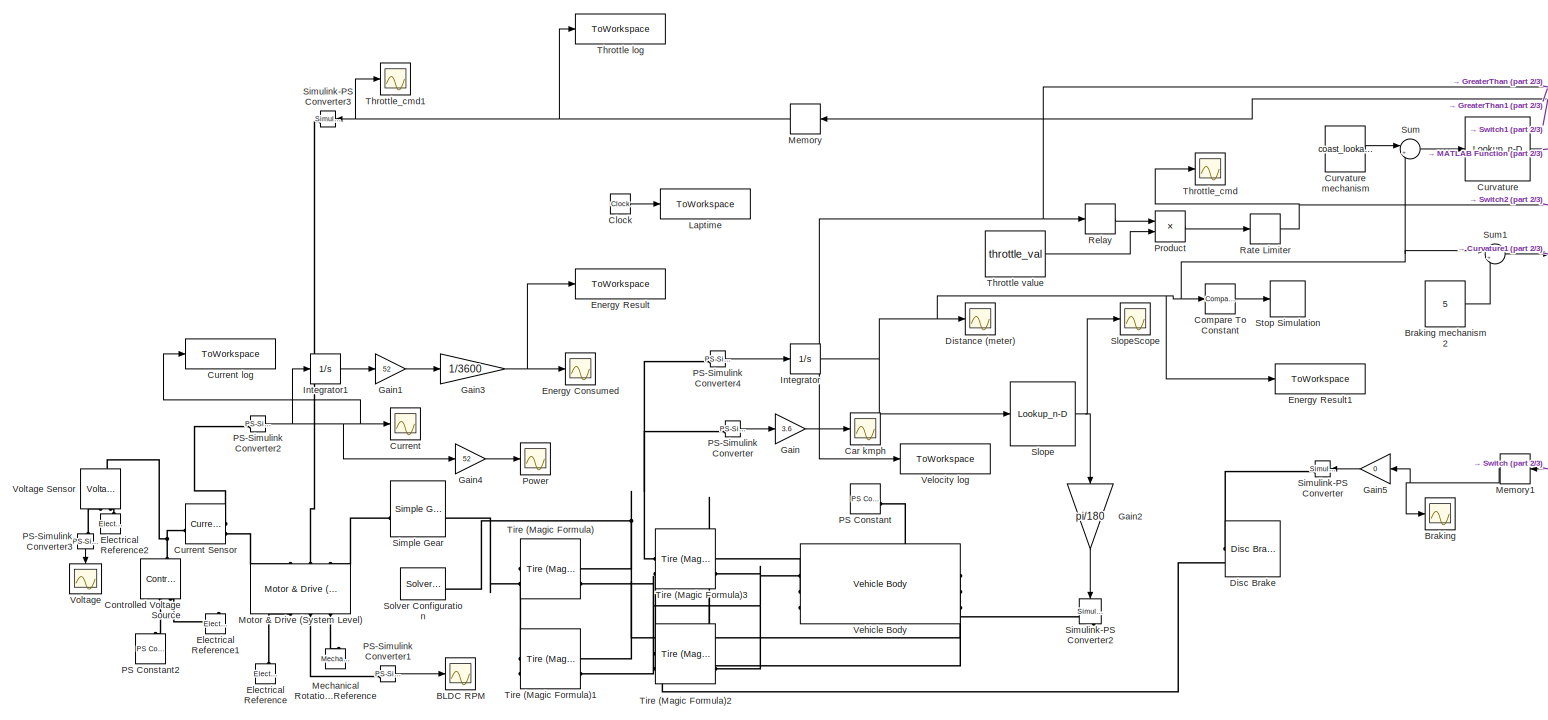
[diagram: root canvas - part 1/3, top center region]
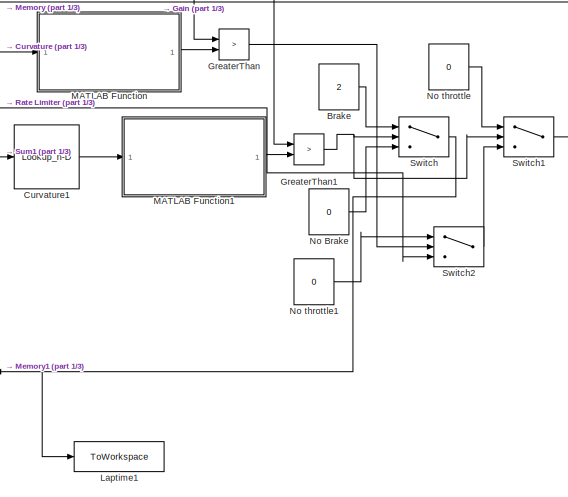
[diagram: root canvas - part 2/3, top right region]
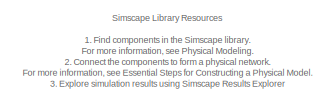
[diagram: root canvas - part 3/3, bottom left region]
MODEL slx_b66715b7597e
KIND model
CONFIG AbsTol = 1e-3
CONFIG EnableMultiTasking = off
CONFIG FixedStep = auto
CONFIG MaxStep = auto
CONFIG MinStep = auto
CONFIG RelTol = 1e-3
CONFIG SampleTimeConstraint = Unconstrained
CONFIG SolverName = VariableStepAuto
CONFIG StartTime = 0.0
CONFIG StopTime = 700
BLOCK [Scope] BLDC RPM
  Floating = off
  NumInputPorts = 1
  ScopeSpecificationString = Simulink.scopes.TimeScopeBlockCfg('CurrentConfiguration', extmgr.ConfigurationSet(extmgr.Configuration('Core','General UI',true),extmgr.Configuration('Core','Source UI',true),extmgr.Configuration('Sources','WiredSimulink',true,'DataLoggingVariableName','ScopeData1'),extmgr.Configuration('Visuals','Time Domain',true,'SerializedDisplays',{struct('MinYLimReal','-27.30095','MaxYLimReal','245.70851','Y...<+1507ch>
BLOCK [Constant] Brake
  Value = 2
BLOCK [Scope] Braking
  Floating = off
  NumInputPorts = 1
  ScopeSpecificationString = Simulink.scopes.TimeScopeBlockCfg('CurrentConfiguration', extmgr.ConfigurationSet(extmgr.Configuration('Core','General UI',true),extmgr.Configuration('Core','Source UI',true),extmgr.Configuration('Sources','WiredSimulink',true,'DataLoggingVariableName','ScopeData1'),extmgr.Configuration('Visuals','Time Domain',true,'SerializedDisplays',{struct('MinYLimReal','-0.25','MaxYLimReal','2.25','YLabelReal...<+1464ch>
BLOCK [Constant] Braking mechanism 2
  Value = 5
BLOCK [Scope] Car kmph
  Floating = off
  NumInputPorts = 1
  ScopeSpecificationString = Simulink.scopes.TimeScopeBlockCfg('CurrentConfiguration', extmgr.ConfigurationSet(extmgr.Configuration('Core','General UI',true),extmgr.Configuration('Core','Source UI',true),extmgr.Configuration('Sources','WiredSimulink',true,'DataLogging',true,'DataLoggingVariableName','LusailSpeed','DataLoggingSaveFormat','StructureWithTime'),extmgr.Configuration('Visuals','Time Domain',true,'SerializedDisplays...<+1547ch>
BLOCK [Clock] Clock
BLOCK [Reference] Compare To Constant  REF=simulink/Logic and Bit
Operations/Compare
To Constant
  SourceBlock = simulink/Logic and Bit\nOperations/Compare\nTo Constant
  SourceType = Compare To Constant
BLOCK [Reference] Controlled Voltage Source  REF=fl_lib/Electrical/Electrical Sources/Controlled Voltage
Source
  NameLocation = right
  SourceBlock = fl_lib/Electrical/Electrical Sources/Controlled Voltage\nSource
  SourceType = Controlled Voltage\nSource
BLOCK [Scope] Current
  Floating = off
  NumInputPorts = 1
  ScopeSpecificationString = Simulink.scopes.TimeScopeBlockCfg('CurrentConfiguration', extmgr.ConfigurationSet(extmgr.Configuration('Core','General UI',true),extmgr.Configuration('Core','Source UI',true),extmgr.Configuration('Sources','WiredSimulink',true,'DataLoggingVariableName','LusailCurr','DataLogging',true,'DataLoggingSaveFormat','StructureWithTime'),extmgr.Configuration('Visuals','Time Domain',true,'SerializedDisplays'...<+1579ch>
BLOCK [Reference] Current Sensor  REF=fl_lib/Electrical/Electrical Sensors/Current Sensor
  SourceBlock = fl_lib/Electrical/Electrical Sensors/Current Sensor
  SourceType = Current Sensor
BLOCK [ToWorkspace] Current log
  FixptAsFi = on
  MaxDataPoints = inf
  SampleTime = -1
  SaveFormat = Timeseries
  VariableName = Current_Log
BLOCK [Lookup_n-D] Curvature
  BreakpointsForDimension1 = track_dist
  InputPortMap = u0
  InternalRulePriority = Speed
  NumberOfTableDimensions = 1
  RndMeth = Simplest
  Table = track_curvature
BLOCK [Constant] Curvature mechanism
  Value = coast_lookahead
BLOCK [Lookup_n-D] Curvature1
  BreakpointsForDimension1 = track_dist
  InputPortMap = u0
  InternalRulePriority = Speed
  NumberOfTableDimensions = 1
  RndMeth = Simplest
  Table = track_curvature
BLOCK [Reference] Disc Brake  REF=sdl_lib/Brakes & Detents/Rotational/Disc Brake
  SourceBlock = sdl_lib/Brakes & Detents/Rotational/Disc Brake
  SourceType = Disc Brake
BLOCK [Scope] Distance (meter)
  Floating = off
  NumInputPorts = 1
  ScopeSpecificationString = Simulink.scopes.TimeScopeBlockCfg('CurrentConfiguration', extmgr.ConfigurationSet(extmgr.Configuration('Core','General UI',true),extmgr.Configuration('Core','Source UI',true),extmgr.Configuration('Sources','WiredSimulink',true,'DataLoggingVariableName','LusailDist','DataLogging',true,'DataLoggingSaveFormat','StructureWithTime'),extmgr.Configuration('Visuals','Time Domain',true,'SerializedDisplays'...<+1566ch>
BLOCK [Reference] Electrical Reference  REF=fl_lib/Electrical/Electrical Elements/Electrical Reference
  SourceBlock = fl_lib/Electrical/Electrical Elements/Electrical Reference
  SourceType = Electrical Reference
BLOCK [Reference] Electrical Reference1  REF=fl_lib/Electrical/Electrical Elements/Electrical Reference
  NameLocation = right
  SourceBlock = fl_lib/Electrical/Electrical Elements/Electrical Reference
  SourceType = Electrical Reference
BLOCK [Reference] Electrical Reference2  REF=fl_lib/Electrical/Electrical Elements/Electrical Reference
  NameLocation = right
  SourceBlock = fl_lib/Electrical/Electrical Elements/Electrical Reference
  SourceType = Electrical Reference
BLOCK [Scope] Energy Consumed
  Floating = off
  NumInputPorts = 1
  ScopeSpecificationString = Simulink.scopes.TimeScopeBlockCfg('CurrentConfiguration', extmgr.ConfigurationSet(extmgr.Configuration('Core','General UI',true),extmgr.Configuration('Core','Source UI',true),extmgr.Configuration('Sources','WiredSimulink',true,'DataLoggingVariableName','ScopeData1'),extmgr.Configuration('Visuals','Time Domain',true,'SerializedDisplays',{struct('MinYLimReal','-1.38442','MaxYLimReal','12.45977','YLa...<+1503ch>
BLOCK [ToWorkspace] Energy Result
  FixptAsFi = on
  MaxDataPoints = inf
  SampleTime = -1
  SaveFormat = Timeseries
  VariableName = Energy_Result
BLOCK [ToWorkspace] Energy Result1
  FixptAsFi = on
  MaxDataPoints = inf
  SampleTime = -1
  SaveFormat = Timeseries
  VariableName = Distance
BLOCK [Gain] Gain
  Gain = 3.6
BLOCK [Gain] Gain1
  Gain = 52
BLOCK [Gain] Gain2
  Gain = pi/180
  NameLocation = left
BLOCK [Gain] Gain3
  Gain = 1/3600
BLOCK [Gain] Gain4
  Gain = 52
BLOCK [Gain] Gain5
  Gain = 0
  NameLocation = top
BLOCK [RelationalOperator] GreaterThan
  InputSameDT = off
  Operator = >
  OutDataTypeStr = boolean
  RndMeth = Simplest
BLOCK [RelationalOperator] GreaterThan1
  InputSameDT = off
  Operator = >
  OutDataTypeStr = boolean
  RndMeth = Simplest
BLOCK [Integrator] Integrator
BLOCK [Integrator] Integrator1
BLOCK [ToWorkspace] Laptime
  FixptAsFi = on
  MaxDataPoints = inf
  SampleTime = -1
  SaveFormat = Timeseries
  VariableName = laptime
BLOCK [ToWorkspace] Laptime1
  FixptAsFi = on
  MaxDataPoints = inf
  SampleTime = -1
  SaveFormat = Timeseries
  VariableName = Brake_Log
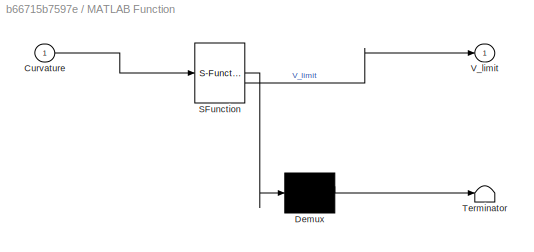
BLOCK [SubSystem] MATLAB Function
  ErrorFcn = Stateflow.Translate.translate
  PermitHierarchicalResolution = ExplicitOnly
  SFBlockType = MATLAB Function
  TreatAsAtomicUnit = on
BLOCK [Demux] MATLAB Function/ Demux 
  Outputs = 1
BLOCK [S-Function] MATLAB Function/ SFunction 
  EnableBusSupport = on
  FunctionName = sf_sfun
  PortCounts = [1 2]
  SFcnIsStateOwnerBlock = off
  SFunctionDeploymentMode = off
  Tag = Stateflow S-Function 1
BLOCK [Terminator] MATLAB Function/ Terminator 
BLOCK [Inport] MATLAB Function/Curvature
BLOCK [Outport] MATLAB Function/V_limit
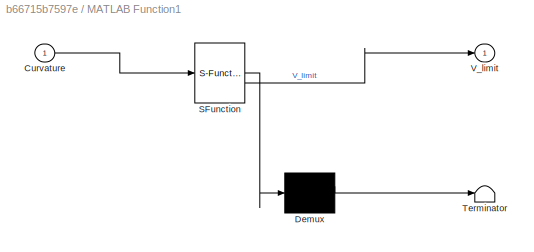
BLOCK [SubSystem] MATLAB Function1
  ErrorFcn = Stateflow.Translate.translate
  PermitHierarchicalResolution = ExplicitOnly
  SFBlockType = MATLAB Function
  TreatAsAtomicUnit = on
BLOCK [Demux] MATLAB Function1/ Demux 
  Outputs = 1
BLOCK [S-Function] MATLAB Function1/ SFunction 
  EnableBusSupport = on
  FunctionName = sf_sfun
  PortCounts = [1 2]
  SFcnIsStateOwnerBlock = off
  SFunctionDeploymentMode = off
  Tag = Stateflow S-Function 3
BLOCK [Terminator] MATLAB Function1/ Terminator 
BLOCK [Inport] MATLAB Function1/Curvature
BLOCK [Outport] MATLAB Function1/V_limit
BLOCK [Reference] Mechanical Rotational Reference  REF=fl_lib/Mechanical/Rotational Elements/Mechanical
Rotational Reference
  NameLocation = right
  SourceBlock = fl_lib/Mechanical/Rotational Elements/Mechanical\nRotational Reference
  SourceType = Mechanical\nRotational Reference
BLOCK [Memory] Memory
  NameLocation = top
BLOCK [Memory] Memory1
  NameLocation = top
BLOCK [Reference] Motor & Drive (System Level)  REF=ee_lib/Electromechanical/Motor & Drive
(System Level)
  NameLocation = right
  SourceBlock = ee_lib/Electromechanical/Motor & Drive\n(System Level)
  SourceType = Motor & Drive\n(System Level)
BLOCK [Constant] No Brake
  Value = 0
BLOCK [Constant] No throttle
  Value = 0
BLOCK [Constant] No throttle1
  Value = 0
BLOCK [Reference] PS Constant  REF=fl_lib/Physical Signals/Sources/PS Constant
  SourceBlock = fl_lib/Physical Signals/Sources/PS Constant
  SourceType = PS Constant
BLOCK [Reference] PS Constant2  REF=fl_lib/Physical Signals/Sources/PS Constant
  NameLocation = right
  SourceBlock = fl_lib/Physical Signals/Sources/PS Constant
  SourceType = PS Constant
BLOCK [Reference] PS-Simulink Converter  REF=nesl_utility/PS-Simulink
Converter
  SourceBlock = nesl_utility/PS-Simulink\nConverter
  SourceType = PS-Simulink\nConverter
BLOCK [Reference] PS-Simulink Converter1  REF=nesl_utility/PS-Simulink
Converter
  SourceBlock = nesl_utility/PS-Simulink\nConverter
  SourceType = PS-Simulink\nConverter
BLOCK [Reference] PS-Simulink Converter2  REF=nesl_utility/PS-Simulink
Converter
  SourceBlock = nesl_utility/PS-Simulink\nConverter
  SourceType = PS-Simulink\nConverter
BLOCK [Reference] PS-Simulink Converter3  REF=nesl_utility/PS-Simulink
Converter
  NameLocation = left
  SourceBlock = nesl_utility/PS-Simulink\nConverter
  SourceType = PS-Simulink\nConverter
BLOCK [Reference] PS-Simulink Converter4  REF=nesl_utility/PS-Simulink
Converter
  SourceBlock = nesl_utility/PS-Simulink\nConverter
  SourceType = PS-Simulink\nConverter
BLOCK [Scope] Power
  Floating = off
  NumInputPorts = 1
  ScopeSpecificationString = Simulink.scopes.TimeScopeBlockCfg('CurrentConfiguration', extmgr.ConfigurationSet(extmgr.Configuration('Core','General UI',true),extmgr.Configuration('Core','Source UI',true),extmgr.Configuration('Sources','WiredSimulink',true,'DataLoggingVariableName','ScopeData2'),extmgr.Configuration('Visuals','Time Domain',true,'SerializedDisplays',{struct('MinYLimReal','-100.41071','MaxYLimReal','903.69623','...<+1513ch>
BLOCK [Product] Product
BLOCK [RateLimiter] Rate Limiter
  FallingSlewLimit = -10
  RisingSlewLimit = throttle_slew
  SampleTimeMode = inherited
BLOCK [Relay] Relay
  OffOutputValue = 1
  OffSwitchValue = lower_bound
  OnOutputValue = 0
  OnSwitchValue = upper_bound
BLOCK [Reference] Simple Gear  REF=sdl_lib/Gears/Simple Gear
  SourceBlock = sdl_lib/Gears/Simple Gear
  SourceType = Simple Gear
BLOCK [Reference] Simulink-PS Converter  REF=nesl_utility/Simulink-PS
Converter
  NameLocation = top
  SourceBlock = nesl_utility/Simulink-PS\nConverter
  SourceType = Simulink-PS\nConverter
BLOCK [Reference] Simulink-PS Converter2  REF=nesl_utility/Simulink-PS
Converter
  NameLocation = left
  SourceBlock = nesl_utility/Simulink-PS\nConverter
  SourceType = Simulink-PS\nConverter
BLOCK [Reference] Simulink-PS Converter3  REF=nesl_utility/Simulink-PS
Converter
  NameLocation = top
  SourceBlock = nesl_utility/Simulink-PS\nConverter
  SourceType = Simulink-PS\nConverter
BLOCK [Lookup_n-D] Slope
  BreakpointsForDimension1 = track_dist
  InputPortMap = u0
  InternalRulePriority = Speed
  NumberOfTableDimensions = 1
  RndMeth = Simplest
  Table = track_slope
BLOCK [Scope] SlopeScope
  Floating = off
  NumInputPorts = 1
  ScopeSpecificationString = Simulink.scopes.TimeScopeBlockCfg('CurrentConfiguration', extmgr.ConfigurationSet(extmgr.Configuration('Core','General UI',true),extmgr.Configuration('Core','Source UI',true),extmgr.Configuration('Sources','WiredSimulink',true,'DataLoggingVariableName','ScopeData1'),extmgr.Configuration('Visuals','Time Domain',true,'SerializedDisplays',{struct('MinYLimReal','-6.46185','MaxYLimReal','6.32383','YLab...<+1480ch>
BLOCK [Reference] Solver Configuration  REF=nesl_utility/Solver
Configuration
  SourceBlock = nesl_utility/Solver\nConfiguration
  SourceType = Solver\nConfiguration
BLOCK [Stop] Stop Simulation
BLOCK [Sum] Sum
  Inputs = |++
BLOCK [Sum] Sum1
  Inputs = |++
BLOCK [Switch] Switch
  Criteria = u2 > Threshold
  InputSameDT = off
  SaturateOnIntegerOverflow = off
BLOCK [Switch] Switch1
  Criteria = u2 > Threshold
  InputSameDT = off
  SaturateOnIntegerOverflow = off
BLOCK [Switch] Switch2
  Criteria = u2 > Threshold
  InputSameDT = off
  SaturateOnIntegerOverflow = off
BLOCK [ToWorkspace] Throttle log
  FixptAsFi = on
  MaxDataPoints = inf
  SampleTime = -1
  SaveFormat = Timeseries
  VariableName = Throttle_Log
BLOCK [Constant] Throttle value
  Value = throttle_val
BLOCK [Scope] Throttle_cmd
  Floating = off
  NumInputPorts = 1
  ScopeSpecificationString = Simulink.scopes.TimeScopeBlockCfg('CurrentConfiguration', extmgr.ConfigurationSet(extmgr.Configuration('Core','General UI',true),extmgr.Configuration('Core','Source UI',true),extmgr.Configuration('Sources','WiredSimulink',true,'DataLoggingVariableName','ScopeData3'),extmgr.Configuration('Visuals','Time Domain',true,'SerializedDisplays',{struct('MinYLimReal','0.7','MaxYLimReal','0.9','YLabelReal','...<+1488ch>
BLOCK [Scope] Throttle_cmd1
  Floating = off
  NumInputPorts = 1
  ScopeSpecificationString = Simulink.scopes.TimeScopeBlockCfg('CurrentConfiguration', extmgr.ConfigurationSet(extmgr.Configuration('Core','General UI',true),extmgr.Configuration('Core','Source UI',true),extmgr.Configuration('Sources','WiredSimulink',true,'DataLoggingVariableName','Lusail_Throt','DataLogging',true,'DataLoggingSaveFormat','StructureWithTime'),extmgr.Configuration('Visuals','Time Domain',true,'SerializedDisplay...<+1600ch>
BLOCK [Reference] Tire (Magic Formula)  REF=sdl_lib/Tires & Vehicles/Tire (Magic Formula)
  SourceBlock = sdl_lib/Tires & Vehicles/Tire (Magic Formula)
  SourceType = Tire (Magic Formula)
BLOCK [Reference] Tire (Magic Formula)1  REF=sdl_lib/Tires & Vehicles/Tire (Magic Formula)
  SourceBlock = sdl_lib/Tires & Vehicles/Tire (Magic Formula)
  SourceType = Tire (Magic Formula)
BLOCK [Reference] Tire (Magic Formula)2  REF=sdl_lib/Tires & Vehicles/Tire (Magic Formula)
  SourceBlock = sdl_lib/Tires & Vehicles/Tire (Magic Formula)
  SourceType = Tire (Magic Formula)
BLOCK [Reference] Tire (Magic Formula)3  REF=sdl_lib/Tires & Vehicles/Tire (Magic Formula)
  SourceBlock = sdl_lib/Tires & Vehicles/Tire (Magic Formula)
  SourceType = Tire (Magic Formula)
BLOCK [Reference] Vehicle Body  REF=sdl_lib/Tires & Vehicles/Vehicle Body
  SourceBlock = sdl_lib/Tires & Vehicles/Vehicle Body
  SourceType = Vehicle Body
BLOCK [ToWorkspace] Velocity log
  FixptAsFi = on
  MaxDataPoints = inf
  SampleTime = -1
  SaveFormat = Timeseries
  VariableName = Velocity_Log
BLOCK [Scope] Voltage
  Floating = off
  NameLocation = left
  NumInputPorts = 1
  ScopeSpecificationString = Simulink.scopes.TimeScopeBlockCfg('CurrentConfiguration', extmgr.ConfigurationSet(extmgr.Configuration('Core','General UI',true),extmgr.Configuration('Core','Source UI',true),extmgr.Configuration('Sources','WiredSimulink',true,'DataLoggingVariableName','ScopeData1'),extmgr.Configuration('Visuals','Time Domain',true,'SerializedDisplays',{struct('MinYLimReal','38.00000','MaxYLimReal','58.00000','YLa...<+1503ch>
BLOCK [Reference] Voltage Sensor  REF=fl_lib/Electrical/Electrical Sensors/Voltage Sensor
  NameLocation = right
  SourceBlock = fl_lib/Electrical/Electrical Sensors/Voltage Sensor
  SourceType = Voltage Sensor
ANNOTATION (root): 1. Find components in the Simscape library . For more information, see Physical Modeling . 2. Connect the components to form a physical network. For more information, see Essential Steps for Constructing a Physical Model . 3. Explore simulation results using Simscape Results Explorer
ANNOTATION (root): Simscape Library Resources
LINE Brake:1 -> Switch:1
LINE Braking mechanism 2:1 -> Sum1:2
LINE Clock:1 -> Laptime:1
LINE Compare To Constant:1 -> Stop Simulation:1
LINE Curvature mechanism:1 -> Sum:1
LINE Curvature1:1 -> MATLAB Function1:1
LINE Curvature:1 -> MATLAB Function:1
LINE Gain1:1 -> Gain3:1
LINE Gain2:1 -> Simulink-PS Converter2:1
NET Gain3:1 -> Energy Consumed:1, Energy Result:1
LINE Gain4:1 -> Power:1
LINE Gain5:1 -> Simulink-PS Converter:1
NET Gain:1 -> Car kmph:1, GreaterThan1:1, GreaterThan:1, Relay:1, Velocity log:1
NET GreaterThan1:1 -> Switch1:2, Switch:2
LINE GreaterThan:1 -> Switch2:2
LINE Integrator1:1 -> Gain1:1
NET Integrator:1 -> Compare To Constant:1, Distance (meter):1, Energy Result1:1, Slope:1, Sum1:1, Sum:2
LINE MATLAB Function1:1 -> GreaterThan1:2
LINE MATLAB Function:1 -> GreaterThan:2
NET Memory1:1 -> Braking:1, Gain5:1
NET Memory:1 -> Simulink-PS Converter3:1, Throttle log:1, Throttle_cmd1:1
LINE No Brake:1 -> Switch:3
LINE No throttle1:1 -> Switch2:1
LINE No throttle:1 -> Switch1:1
LINE PS-Simulink Converter1:1 -> BLDC RPM:1
NET PS-Simulink Converter2:1 -> Current log:1, Current:1, Gain4:1, Integrator1:1
LINE PS-Simulink Converter3:1 -> Voltage:1
LINE PS-Simulink Converter4:1 -> Integrator:1
LINE PS-Simulink Converter:1 -> Gain:1
LINE Product:1 -> Rate Limiter:1
NET Rate Limiter:1 -> Switch2:3, Throttle_cmd:1
LINE Relay:1 -> Product:1
NET Slope:1 -> Gain2:1, SlopeScope:1
LINE Sum1:1 -> Curvature1:1
LINE Sum:1 -> Curvature:1
LINE Switch1:1 -> Memory:1
LINE Switch2:1 -> Switch1:3
NET Switch:1 -> Laptime1:1, Memory1:1
LINE Throttle value:1 -> Product:2
PNET net1: Controlled Voltage Source:LConn1 -- Current Sensor:LConn1 -- Voltage Sensor:LConn1
PLINE Controlled Voltage Source:RConn1 -- PS Constant2:RConn1
PLINE Controlled Voltage Source:RConn2 -- Electrical Reference1:LConn1
PLINE Current Sensor:RConn1 -- PS-Simulink Converter2:LConn1
PLINE Current Sensor:RConn2 -- Motor & Drive (System Level):LConn1
PLINE Disc Brake:LConn1 -- Simulink-PS Converter:RConn1
PNET net2: Disc Brake:LConn2 -- Tire (Magic Formula)2:LConn2 -- Tire (Magic Formula)3:LConn2
PLINE Electrical Reference2:LConn1 -- Voltage Sensor:RConn2
PLINE Electrical Reference:LConn1 -- Motor & Drive (System Level):RConn1
PLINE Mechanical Rotational Reference:LConn1 -- Motor & Drive (System Level):RConn3
PLINE Motor & Drive (System Level):LConn2 -- Simulink-PS Converter3:RConn1
PLINE Motor & Drive (System Level):LConn3 -- Simple Gear:LConn1
PLINE Motor & Drive (System Level):RConn2 -- PS-Simulink Converter1:LConn1
PLINE PS Constant:RConn1 -- Vehicle Body:LConn3
PLINE PS-Simulink Converter3:LConn1 -- Voltage Sensor:RConn1
PNET net3: PS-Simulink Converter4:LConn1 -- PS-Simulink Converter:LConn1 -- Vehicle Body:LConn2
PNET net4: Simple Gear:RConn1 -- Tire (Magic Formula)1:LConn2 -- Tire (Magic Formula):LConn2
PLINE Simulink-PS Converter2:RConn1 -- Vehicle Body:RConn3
PNET net5: Solver Configuration:RConn1 -- Tire (Magic Formula)1:LConn1 -- Tire (Magic Formula):LConn1 -- Vehicle Body:RConn1
PNET net6: Tire (Magic Formula)1:RConn2 -- Tire (Magic Formula)2:RConn2 -- Tire (Magic Formula)3:RConn2 -- Tire (Magic Formula):RConn2 -- Vehicle Body:LConn1
PNET net7: Tire (Magic Formula)2:LConn1 -- Tire (Magic Formula)3:LConn1 -- Vehicle Body:RConn2
note: NET lines group one-source signal fan-out (src -> all destinations, sorted); 1:1 wires keep LINE; PNET lines group multi-terminal physical nets as a canonical sorted terminal list (undirected conserving connections); 2-terminal nets keep the pairwise PLINE form
CHART MATLAB Function1 states=1 transitions=1
  STATE_LABEL 'eML_blk_kernel()'
  STATE_LABEL 'SCRIPT:\nfunction V_limit = fcn(Curvature)\n    % Parameter Fisika\n    mu = 0.8;   % Gesekan ban\n    g  = 9.81;  % Gravitasi\n    \n    % Safety margin (biar gak ngepas banget teorinya)\n    margin = 999; \n    \n    % Hindari pembagian nol (jalan lurus curvature = 0)\n    k = abs(Curvature);\n    if k < 0.0001\n        k = 0.0001; \n    end\n    \n    % Rumus Fisika Tikungan\n    % V = sqrt(mu * g / k)\n    V_l...<+154ch>'
CHART MATLAB Function states=1 transitions=1
  STATE_LABEL 'eML_blk_kernel()'
  STATE_LABEL 'SCRIPT:\nfunction V_limit = fcn(Curvature)\n    % Parameter Fisika\n    mu = 0.8;   % Gesekan ban\n    g  = 9.81;  % Gravitasi\n    \n    % Safety margin (biar gak ngepas banget teorinya)\n    margin = 999; \n    \n    % Hindari pembagian nol (jalan lurus curvature = 0)\n    k = abs(Curvature);\n    if k < 0.0001\n        k = 0.0001; \n    end\n    \n    % Rumus Fisika Tikungan\n    % V = sqrt(mu * g / k)\n    V_l...<+154ch>'
CHART  states=0 transitions=0
CHART  states=0 transitions=0
